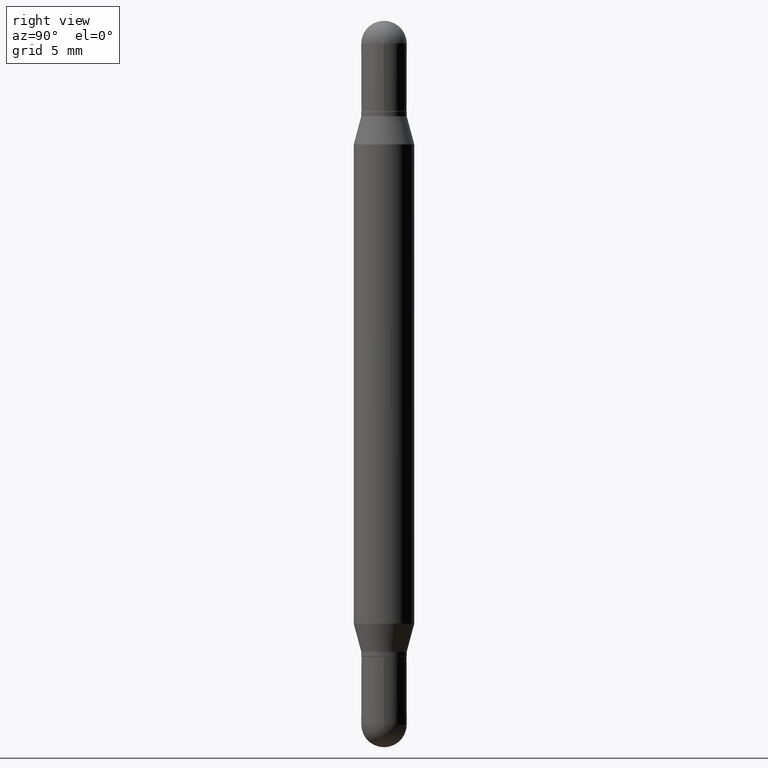
[diagram: clean part render]
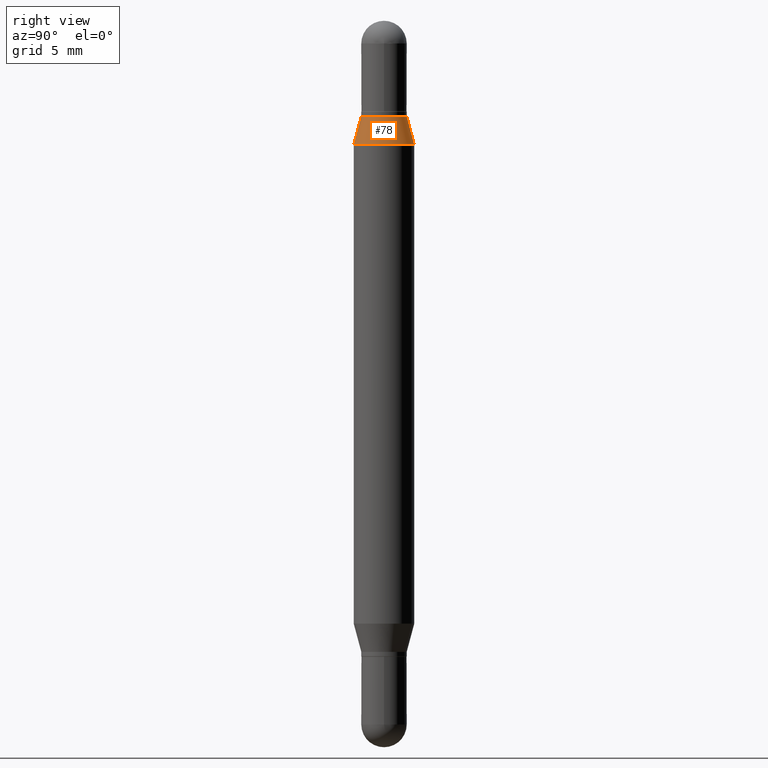
[diagram: same view with one face highlighted and labeled with its STEP entity id]
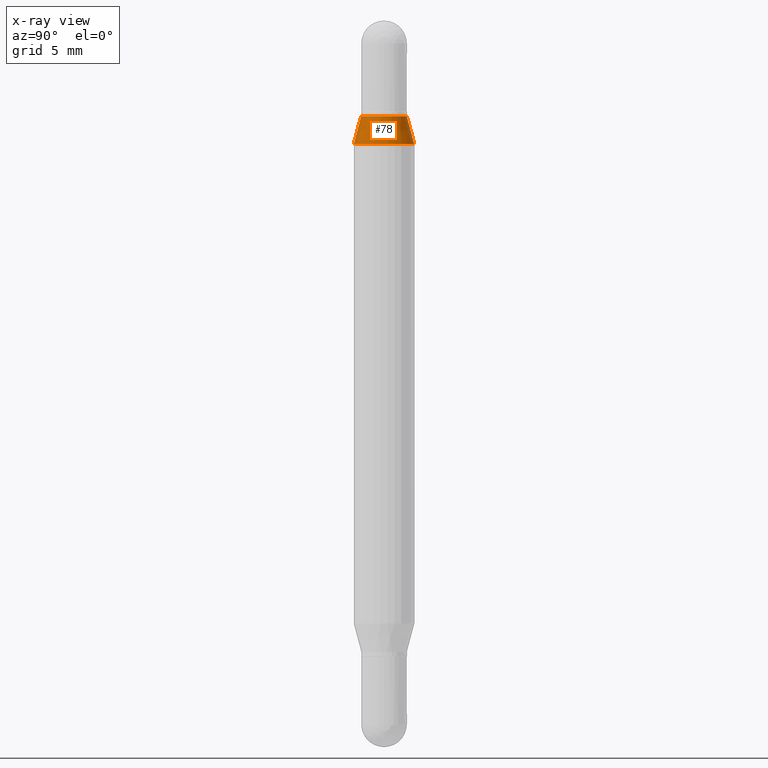
[diagram: x-ray of the same camera — body ghosted, the highlighted face saturated]
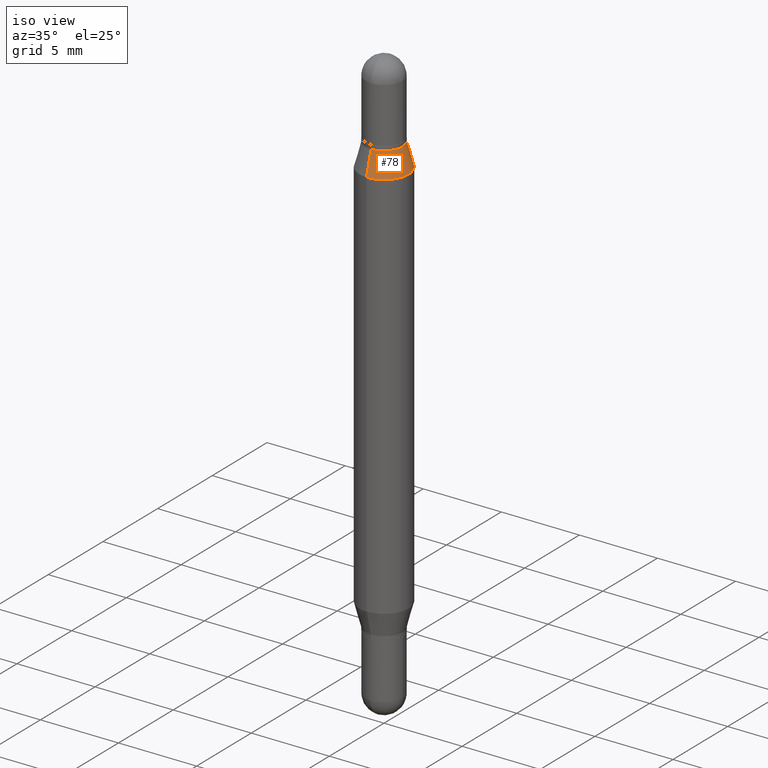
[diagram: same view with one face highlighted and labeled with its STEP entity id]
A machine part, right view. The second image highlights one B-rep face of the part: STEP entity #78.
The next image is the same camera in x-ray: the body ghosted, the highlighted face saturated — about 0% of this face is hidden behind the body in this view.
A second angle (iso view) of the same face is appended — the face is thin or edge-on in the first view.
In plain terms, the highlighted conical surface has half-angle 15 deg.
Its self-contained STEP definition (entity closure, byte-faithful):
#53 = CARTESIAN_POINT ( 'NONE',  ( 3.186670205041240929E-29, -6.940629210909444881E-16, -0.1970000000000001195 ) ) ;
#60 = AXIS2_PLACEMENT_3D ( 'NONE', #300, #219, #478 ) ;
#71 = LINE ( 'NONE', #1089, #767 ) ;
#78 = ADVANCED_FACE ( 'NONE', ( #825 ), #127, .T. ) ;
#95 = CIRCLE ( 'NONE', #976, 0.06250000000000000000 ) ;
#127 = CONICAL_SURFACE ( 'NONE', #468, 0.04689999999999964336, 0.2617993877991500740 ) ;
#133 = DIRECTION ( 'NONE',  ( 2.445640986217375071E-29, 3.479861038583872715E-15, 1.000000000000000000 ) ) ;
#219 = DIRECTION ( 'NONE',  ( 2.445640986217375071E-29, 3.479861038583872715E-15, 1.000000000000000000 ) ) ;
#245 = ORIENTED_EDGE ( 'NONE', *, *, #528, .T. ) ;
#285 = ORIENTED_EDGE ( 'NONE', *, *, #894, .F. ) ;
#300 = CARTESIAN_POINT ( 'NONE',  ( 3.186670205041240929E-29, -6.940629210909444881E-16, -0.1970000000000001195 ) ) ;
#312 = DIRECTION ( 'NONE',  ( -2.445640986217375071E-29, -3.479861038583872715E-15, -1.000000000000000000 ) ) ;
#456 = CARTESIAN_POINT ( 'NONE',  ( 3.217573560955141730E-16, 0.04689999999999894947, -0.1970000000000002860 ) ) ;
#468 = AXIS2_PLACEMENT_3D ( 'NONE', #53, #312, #549 ) ;
#478 = DIRECTION ( 'NONE',  ( -6.982962677686265133E-15, -1.000000000000000000, 3.640522379616583431E-15 ) ) ;
#480 = CARTESIAN_POINT ( 'NONE',  ( 3.044285004926114619E-29, -8.966604049996300104E-16, -0.2552199925980758177 ) ) ;
#495 = CARTESIAN_POINT ( 'NONE',  ( 3.217573560955143209E-16, 0.04689999999999894947, -0.1970000000000002860 ) ) ;
#518 = VERTEX_POINT ( 'NONE', #495 ) ;
#528 = EDGE_CURVE ( 'NONE', #648, #999, #95, .T. ) ;
#549 = DIRECTION ( 'NONE',  ( -6.982962677686265133E-15, -1.000000000000000000, 3.640522379616583431E-15 ) ) ;
#555 = DIRECTION ( 'NONE',  ( -1.807323732225328562E-15, -0.2588190451025247363, -0.9659258262890673130 ) ) ;
#570 = VERTEX_POINT ( 'NONE', #902 ) ;
#648 = VERTEX_POINT ( 'NONE', #848 ) ;
#665 = CARTESIAN_POINT ( 'NONE',  ( 4.287811248607510938E-16, 0.06249999999999910488, -0.2552199925980759843 ) ) ;
#767 = VECTOR ( 'NONE', #555, 39.37007874015748854 ) ;
#825 = FACE_OUTER_BOUND ( 'NONE', #942, .T. ) ;
#840 = DIRECTION ( 'NONE',  ( -6.982962677686265922E-15, -1.000000000000000000, 3.278217592397115862E-15 ) ) ;
#848 = CARTESIAN_POINT ( 'NONE',  ( -4.364351673553612490E-16, -0.06250000000000090206, -0.2552199925980755957 ) ) ;
#894 = EDGE_CURVE ( 'NONE', #518, #999, #1055, .T. ) ;
#902 = CARTESIAN_POINT ( 'NONE',  ( -3.275009495834514884E-16, -0.04690000000000033031, -0.1969999999999999529 ) ) ;
#942 = EDGE_LOOP ( 'NONE', ( #285, #988, #1067, #245 ) ) ;
#958 = CIRCLE ( 'NONE', #60, 0.04689999999999964336 ) ;
#969 = DIRECTION ( 'NONE',  ( 1.775627540710963525E-15, 0.2588190451025179639, -0.9659258262890690894 ) ) ;
#976 = AXIS2_PLACEMENT_3D ( 'NONE', #480, #133, #840 ) ;
#988 = ORIENTED_EDGE ( 'NONE', *, *, #1040, .F. ) ;
#999 = VERTEX_POINT ( 'NONE', #665 ) ;
#1018 = EDGE_CURVE ( 'NONE', #570, #648, #71, .T. ) ;
#1040 = EDGE_CURVE ( 'NONE', #570, #518, #958, .T. ) ;
#1055 = LINE ( 'NONE', #456, #1110 ) ;
#1067 = ORIENTED_EDGE ( 'NONE', *, *, #1018, .T. ) ;
#1089 = CARTESIAN_POINT ( 'NONE',  ( -3.275009495834514884E-16, -0.04690000000000033031, -0.1969999999999999529 ) ) ;
#1110 = VECTOR ( 'NONE', #969, 39.37007874015748854 ) ;